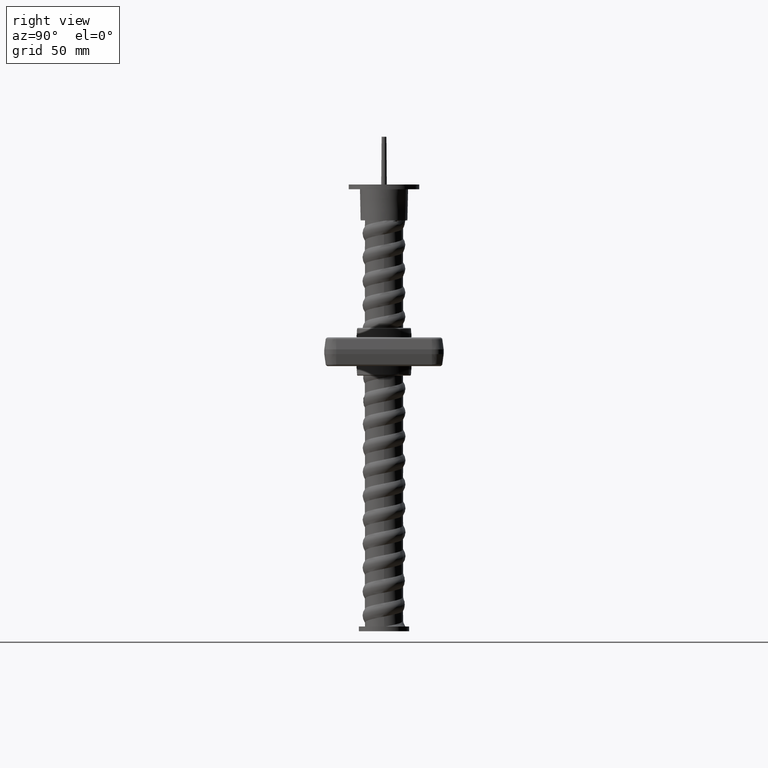
[diagram: clean part render]
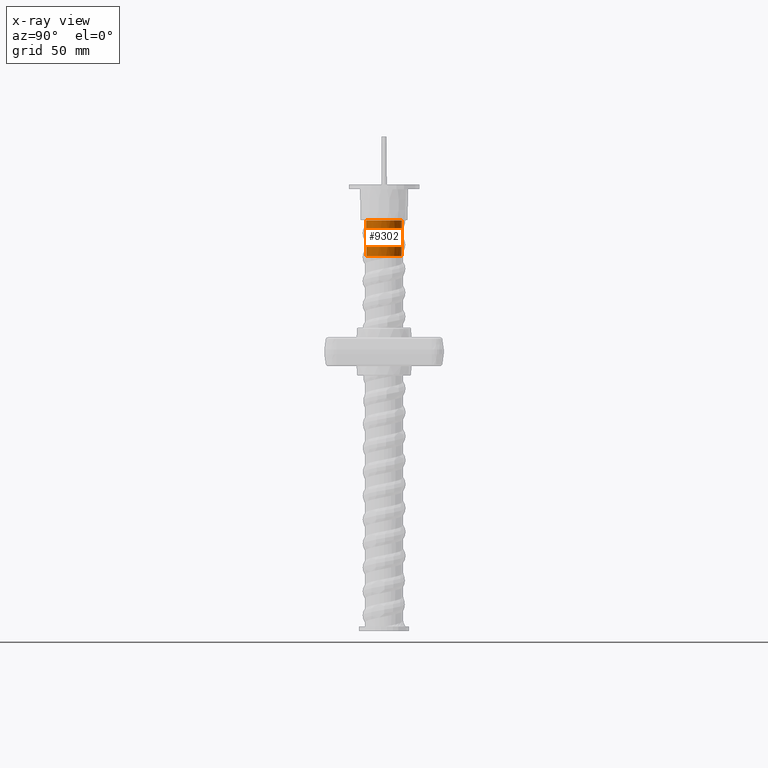
[diagram: x-ray — body ghosted, one internal face saturated and labeled with its STEP entity id]
A machine part, right view, then the same camera in x-ray: the body is ghosted and one INTERNAL B-rep face — a face not visible from any outside direction — is saturated and labeled: STEP entity #9302.
In plain terms, the highlighted conical surface has half-angle 0.382 deg.
Its self-contained STEP definition (entity closure, byte-faithful):
#416 = CARTESIAN_POINT ( 'NONE',  ( -1.386669559958808282E-31, -1.824240843323580473E-31, 7.400000000000001243 ) ) ;
#994 = CARTESIAN_POINT ( 'NONE',  ( 9.123618653647779187E-16, 1.824240843323580692E-31, -7.400000000000001243 ) ) ;
#1025 = LINE ( 'NONE', #16842, #34701 ) ;
#2907 = CIRCLE ( 'NONE', #33079, 7.400000000000001243 ) ;
#3910 = CARTESIAN_POINT ( 'NONE',  ( 0.0000000000000000000, 15.00000000000002665, 0.0000000000000000000 ) ) ;
#4049 = ORIENTED_EDGE ( 'NONE', *, *, #25050, .F. ) ;
#5467 = DIRECTION ( 'NONE',  ( 8.164130571207295831E-19, 0.9999777785184910117, -0.006666518523456449810 ) ) ;
#7151 = CONICAL_SURFACE ( 'NONE', #33883, 7.400000000000001243, 0.006666567903868072381 ) ;
#7204 = DIRECTION ( 'NONE',  ( 1.276204305030111338E-62, 0.0000000000000000000, -1.000000000000000000 ) ) ;
#9279 = CARTESIAN_POINT ( 'NONE',  ( -2.773339119917616563E-31, 15.00000000000002665, 7.499999999999999112 ) ) ;
#9302 = ADVANCED_FACE ( 'NONE', ( #41835 ), #7151, .T. ) ;
#10614 = DIRECTION ( 'NONE',  ( -1.848892746611740945E-32, 1.000000000000000000, 2.465190328815648755E-32 ) ) ;
#10619 = EDGE_CURVE ( 'NONE', #38929, #38377, #1025, .T. ) ;
#10997 = VERTEX_POINT ( 'NONE', #994 ) ;
#16283 = DIRECTION ( 'NONE',  ( -1.848851661475760078E-32, 0.9999777785184910117, 0.006666518523456449810 ) ) ;
#16842 = CARTESIAN_POINT ( 'NONE',  ( -9.443911857222826061E-62, 1.824240843323578502E-31, 7.400000000000001243 ) ) ;
#17360 = ORIENTED_EDGE ( 'NONE', *, *, #24808, .F. ) ;
#18748 = DIRECTION ( 'NONE',  ( 1.848892746611740945E-32, -1.000000000000000000, -2.465190328815648755E-32 ) ) ;
#19605 = DIRECTION ( 'NONE',  ( -1.276204305030111338E-62, 2.465190328815646292E-32, 1.000000000000000000 ) ) ;
#22142 = AXIS2_PLACEMENT_3D ( 'NONE', #3910, #26746, #7204 ) ;
#22773 = CIRCLE ( 'NONE', #22142, 7.499999999999999112 ) ;
#23479 = ORIENTED_EDGE ( 'NONE', *, *, #24565, .T. ) ;
#24565 = EDGE_CURVE ( 'NONE', #38377, #34894, #22773, .T. ) ;
#24808 = EDGE_CURVE ( 'NONE', #10997, #34894, #30431, .T. ) ;
#25050 = EDGE_CURVE ( 'NONE', #38929, #10997, #2907, .T. ) ;
#26746 = DIRECTION ( 'NONE',  ( 1.848892746611740945E-32, -1.000000000000000000, -2.465190328815648755E-32 ) ) ;
#28295 = CARTESIAN_POINT ( 'NONE',  ( 9.062386313690414374E-16, -1.824240843323578283E-31, -7.400000000000001243 ) ) ;
#30431 = LINE ( 'NONE', #28295, #39047 ) ;
#33079 = AXIS2_PLACEMENT_3D ( 'NONE', #38237, #18748, #41516 ) ;
#33883 = AXIS2_PLACEMENT_3D ( 'NONE', #35839, #10614, #19605 ) ;
#34701 = VECTOR ( 'NONE', #16283, 1000.000000000000114 ) ;
#34894 = VERTEX_POINT ( 'NONE', #36617 ) ;
#35839 = CARTESIAN_POINT ( 'NONE',  ( 0.0000000000000000000, 0.0000000000000000000, 0.0000000000000000000 ) ) ;
#36617 = CARTESIAN_POINT ( 'NONE',  ( 9.184850993605145972E-16, 15.00000000000002665, -7.499999999999999112 ) ) ;
#38136 = EDGE_LOOP ( 'NONE', ( #17360, #4049, #41455, #23479 ) ) ;
#38237 = CARTESIAN_POINT ( 'NONE',  ( 0.0000000000000000000, 0.0000000000000000000, 0.0000000000000000000 ) ) ;
#38377 = VERTEX_POINT ( 'NONE', #9279 ) ;
#38929 = VERTEX_POINT ( 'NONE', #416 ) ;
#39047 = VECTOR ( 'NONE', #5467, 1000.000000000000114 ) ;
#41455 = ORIENTED_EDGE ( 'NONE', *, *, #10619, .T. ) ;
#41516 = DIRECTION ( 'NONE',  ( 1.276204305030111338E-62, -2.465190328815646292E-32, -1.000000000000000000 ) ) ;
#41835 = FACE_OUTER_BOUND ( 'NONE', #38136, .T. ) ;